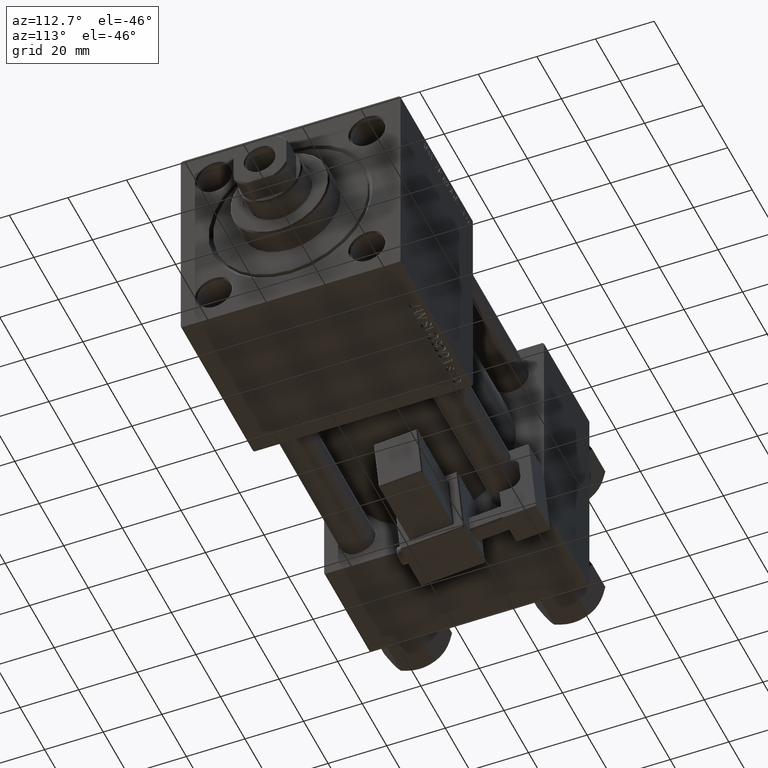
[diagram: clean part render]
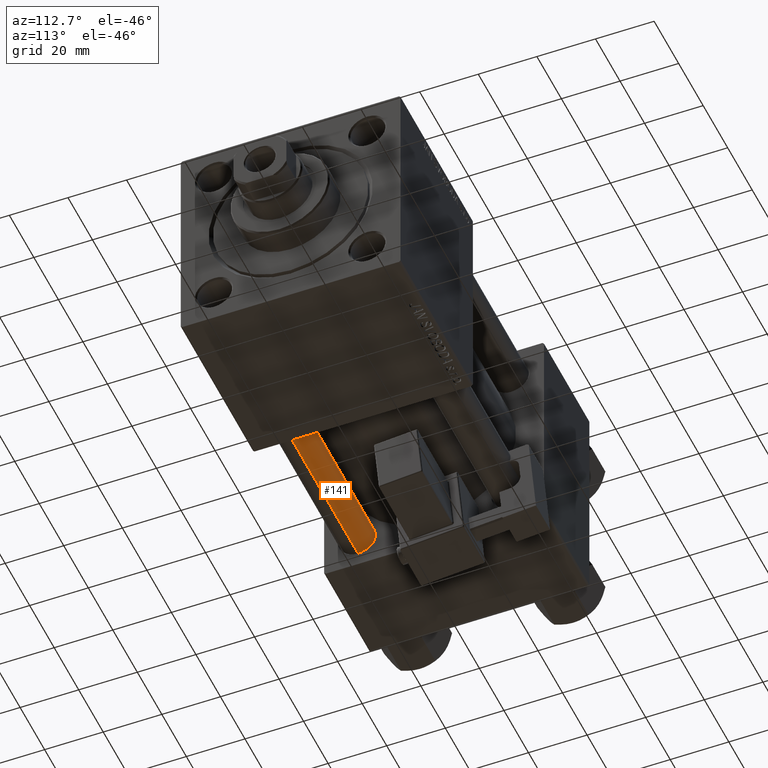
[diagram: same view with one face highlighted and labeled with its STEP entity id]
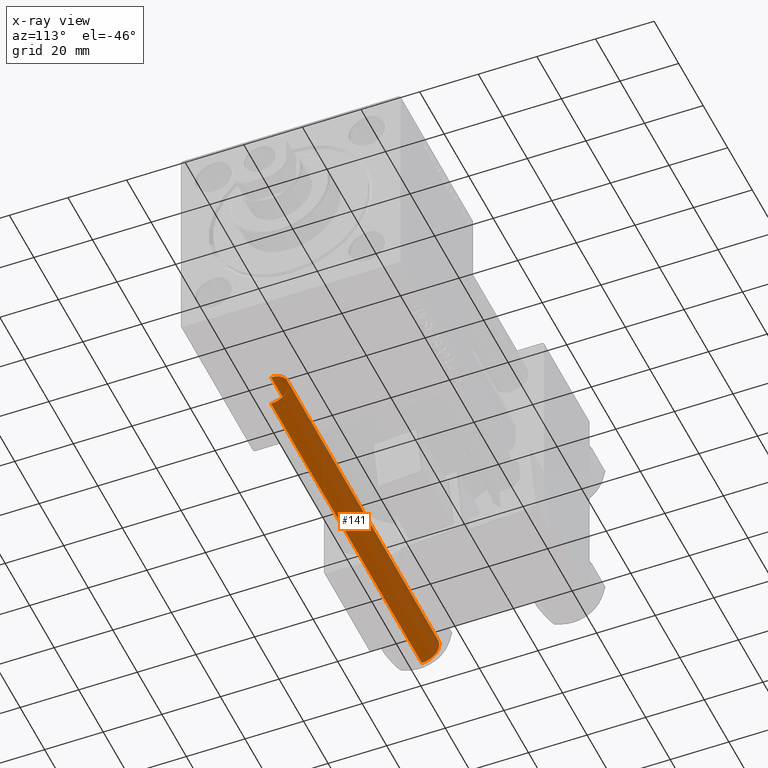
[diagram: x-ray of the same camera — body ghosted, the highlighted face saturated]
A machine part, auxiliary view. The second image highlights one B-rep face of the part: STEP entity #141.
The next image is the same camera in x-ray: the body ghosted, the highlighted face saturated — about 0% of this face is hidden behind the body in this view.
In plain terms, the highlighted cylindrical surface (edge-blend (fillet) strip) has radius 6 mm, axis along (-1, 0, -0).
Its self-contained STEP definition (entity closure, byte-faithful):
#141 = ADVANCED_FACE ( 'NONE', ( #9119 ), #17599, .T. ) ;
#2054 = VECTOR ( 'NONE', #44107, 1000.000000000000000 ) ;
#2206 = EDGE_CURVE ( 'NONE', #20487, #20068, #10425, .T. ) ;
#3011 = DIRECTION ( 'NONE',  ( -0.000000000000000000, -0.000000000000000000, -1.000000000000000000 ) ) ;
#3786 = ORIENTED_EDGE ( 'NONE', *, *, #2206, .T. ) ;
#4890 = EDGE_LOOP ( 'NONE', ( #52046, #28788, #40974, #3786 ) ) ;
#7613 = EDGE_CURVE ( 'NONE', #28876, #51332, #35991, .T. ) ;
#9119 = FACE_OUTER_BOUND ( 'NONE', #4890, .T. ) ;
#10425 = CIRCLE ( 'NONE', #43386, 6.000000000000000888 ) ;
#16900 = CARTESIAN_POINT ( 'NONE',  ( 0.000000000000000000, 0.000000000000000000, 0.4999999999999865663 ) ) ;
#17599 = CYLINDRICAL_SURFACE ( 'NONE', #31482, 6.000000000000000888 ) ;
#19356 = DIRECTION ( 'NONE',  ( 1.000000000000000000, 0.000000000000000000, 0.000000000000000000 ) ) ;
#20068 = VERTEX_POINT ( 'NONE', #24325 ) ;
#20083 = DIRECTION ( 'NONE',  ( 1.000000000000000000, 0.000000000000000000, 0.000000000000000000 ) ) ;
#20487 = VERTEX_POINT ( 'NONE', #29331 ) ;
#21306 = CARTESIAN_POINT ( 'NONE',  ( 0.000000000000000000, 0.000000000000000000, 124.0000000000000000 ) ) ;
#23589 = DIRECTION ( 'NONE',  ( 0.000000000000000000, 0.000000000000000000, -1.000000000000000000 ) ) ;
#23913 = CARTESIAN_POINT ( 'NONE',  ( 6.000000000000000888, 7.347880794884120722E-16, 124.0000000000000000 ) ) ;
#23985 = LINE ( 'NONE', #35921, #2054 ) ;
#24325 = CARTESIAN_POINT ( 'NONE',  ( 6.000000000000000888, 7.347880794884120722E-16, 0.4999999999999865663 ) ) ;
#26079 = DIRECTION ( 'NONE',  ( -0.000000000000000000, -0.000000000000000000, -1.000000000000000000 ) ) ;
#28788 = ORIENTED_EDGE ( 'NONE', *, *, #7613, .T. ) ;
#28876 = VERTEX_POINT ( 'NONE', #49138 ) ;
#29331 = CARTESIAN_POINT ( 'NONE',  ( -6.000000000000000888, 0.000000000000000000, 0.4999999999999865663 ) ) ;
#31482 = AXIS2_PLACEMENT_3D ( 'NONE', #21306, #26079, #42218 ) ;
#35921 = CARTESIAN_POINT ( 'NONE',  ( -6.000000000000000888, 0.000000000000000000, 124.0000000000000000 ) ) ;
#35991 = CIRCLE ( 'NONE', #44446, 6.000000000000000888 ) ;
#36238 = DIRECTION ( 'NONE',  ( -0.000000000000000000, -0.000000000000000000, 1.000000000000000000 ) ) ;
#37886 = CARTESIAN_POINT ( 'NONE',  ( -6.000000000000000888, 0.000000000000000000, 123.5000000000000426 ) ) ;
#39984 = VECTOR ( 'NONE', #3011, 1000.000000000000000 ) ;
#40332 = LINE ( 'NONE', #23913, #39984 ) ;
#40848 = EDGE_CURVE ( 'NONE', #51332, #20487, #23985, .T. ) ;
#40974 = ORIENTED_EDGE ( 'NONE', *, *, #40848, .T. ) ;
#42218 = DIRECTION ( 'NONE',  ( -1.000000000000000000, 0.000000000000000000, 0.000000000000000000 ) ) ;
#43386 = AXIS2_PLACEMENT_3D ( 'NONE', #16900, #36238, #20083 ) ;
#43972 = CARTESIAN_POINT ( 'NONE',  ( 0.000000000000000000, 0.000000000000000000, 123.5000000000000426 ) ) ;
#44107 = DIRECTION ( 'NONE',  ( -0.000000000000000000, -0.000000000000000000, -1.000000000000000000 ) ) ;
#44446 = AXIS2_PLACEMENT_3D ( 'NONE', #43972, #23589, #19356 ) ;
#49138 = CARTESIAN_POINT ( 'NONE',  ( 6.000000000000000888, 7.347880794884120722E-16, 123.5000000000000426 ) ) ;
#51332 = VERTEX_POINT ( 'NONE', #37886 ) ;
#51960 = EDGE_CURVE ( 'NONE', #28876, #20068, #40332, .T. ) ;
#52046 = ORIENTED_EDGE ( 'NONE', *, *, #51960, .F. ) ;